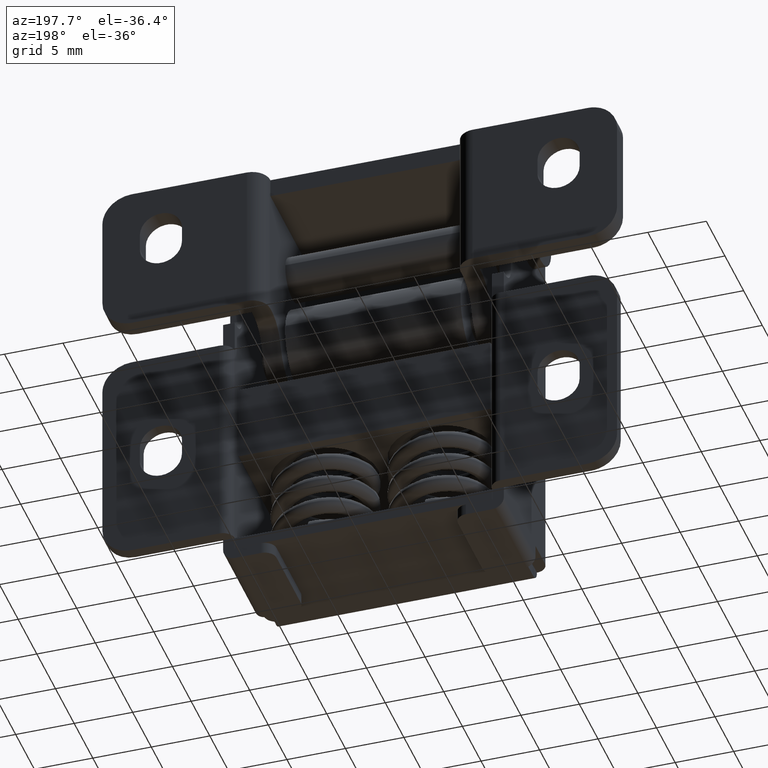
[diagram: clean part render]
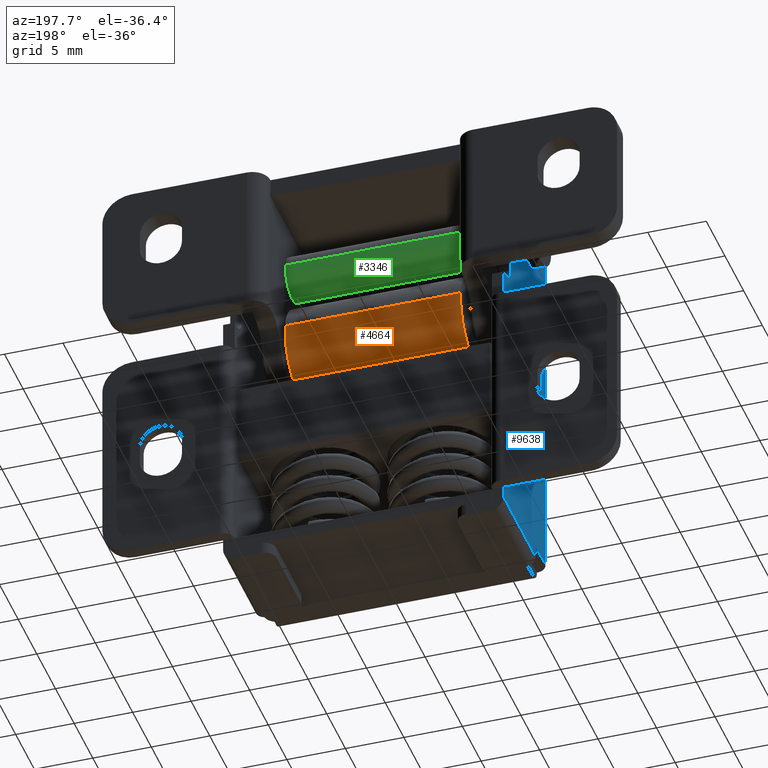
[diagram: same view with three faces highlighted in distinct colors, each labeled with its STEP entity id]
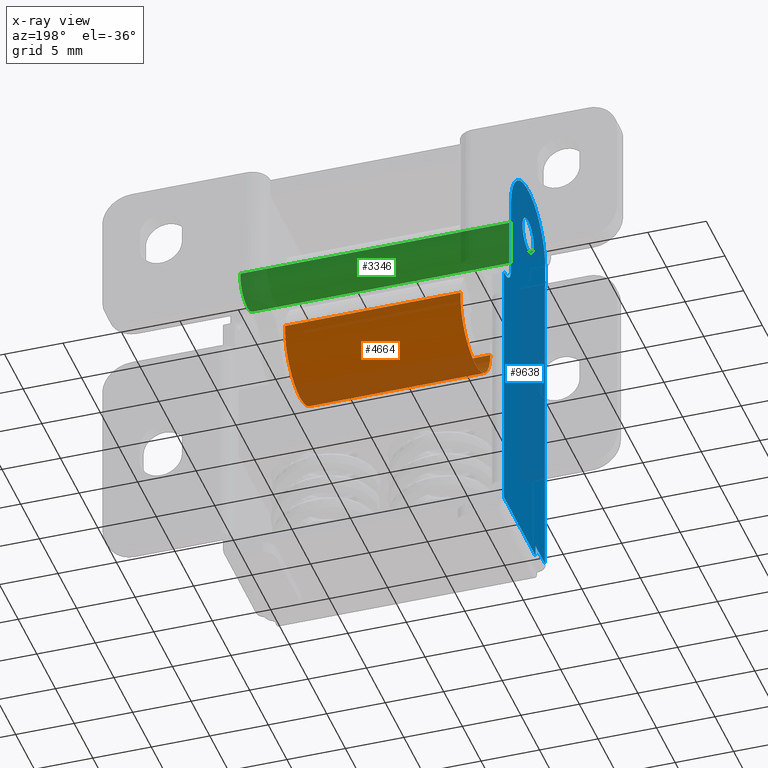
[diagram: x-ray of the same camera — body ghosted, the three highlighted faces saturated]
A machine part, auxiliary view with three faces highlighted in distinct colors.
The next image is the same camera in x-ray (body ghosted, the three faces saturated) — at least one of them is partly hidden behind the body in this view.
Their STEP definitions:

[orange] entity #4664 — the highlighted face is a freeform B-spline surface patch.
#4562=CARTESIAN_POINT('',(7.875000000000003,3.972038105454666,-7.527863061372967));
#4563=CARTESIAN_POINT('',(7.875000000000002,3.985550461794422,-7.641541085448090));
#4564=CARTESIAN_POINT('',(7.875000000000001,3.992539193687467,-7.755805841860572));
#4565=CARTESIAN_POINT('',(7.875000000000002,4.236733351826894,-11.748345035548038));
#4566=CARTESIAN_POINT('',(7.875000000000001,0.244194158139428,-11.992539193687470));
#4567=CARTESIAN_POINT('',(7.875000000000002,-3.748345035548039,-12.236733351826894));
#4568=CARTESIAN_POINT('',(7.875000000000001,-3.992539193687467,-8.244194158139427));
#4569=CARTESIAN_POINT('',(-7.884375000000001,3.972038105454666,-7.527863061372967));
#4570=CARTESIAN_POINT('',(-7.884375000000000,3.985550461794422,-7.641541085448090));
#4571=CARTESIAN_POINT('',(-7.884375000000000,3.992539193687467,-7.755805841860572));
#4572=CARTESIAN_POINT('',(-7.884375000000000,4.236733351826894,-11.748345035548038));
#4573=CARTESIAN_POINT('',(-7.884375000000000,0.244194158139428,-11.992539193687470));
#4574=CARTESIAN_POINT('',(-7.884375000000000,-3.748345035548039,-12.236733351826894));
#4575=CARTESIAN_POINT('',(-7.884375000000000,-3.992539193687467,-8.244194158139427));
#4583=(BOUNDED_SURFACE()B_SPLINE_SURFACE(2,1,((#4562,#4569),(#4563,#4570),(#4564,#4571),(#4565,#4572),(#4566,#4573),(#4567,#4574),(#4568,#4575)),.UNSPECIFIED.,.F.,.F.,.U.)B_SPLINE_SURFACE_WITH_KNOTS((3,2,2,3),(2,2),(0.0,0.265096679918781,6.892513677888302,13.519930675857820),(0.0,15.759375000000000),.UNSPECIFIED.)GEOMETRIC_REPRESENTATION_ITEM()RATIONAL_B_SPLINE_SURFACE(((0.977505800795127,0.977505800795127),(0.988284271247462,0.988284271247462),(1.0,1.0),(0.707106781186548,0.707106781186548),(1.0,1.0),(0.707106781186548,0.707106781186548),(1.0,1.0)))REPRESENTATION_ITEM('')SURFACE());
#4584=CARTESIAN_POINT('',(7.500000000000000,3.972038105449978,-7.527863061333534));
#4585=VERTEX_POINT('',#4584);
#4586=CARTESIAN_POINT('',(7.500000000000000,0.0,-12.0));
#4587=VERTEX_POINT('',#4586);
#4588=CARTESIAN_POINT('',(7.500000000000000,3.972038105449978,-7.527863061333534));
#4589=CARTESIAN_POINT('',(7.500000000000000,4.000000000000000,-7.763103521352511));
#4590=CARTESIAN_POINT('',(7.500000000000000,4.0,-8.0));
#4591=CARTESIAN_POINT('',(7.500000000000000,4.000000000000000,-12.0));
#4592=CARTESIAN_POINT('',(7.500000000000000,0.0,-12.0));
#4600=(BOUNDED_CURVE()B_SPLINE_CURVE(2,(#4588,#4589,#4590,#4591,#4592),.UNSPECIFIED.,.F.,.U.)B_SPLINE_CURVE_WITH_KNOTS((3,2,3),(0.229562473512289,0.250000000000000,0.500000000000000),.UNSPECIFIED.)CURVE()GEOMETRIC_REPRESENTATION_ITEM()RATIONAL_B_SPLINE_CURVE((0.956026754181309,0.976055948329716,1.0,0.707106781186548,1.0))REPRESENTATION_ITEM(''));
#4601=EDGE_CURVE('',#4585,#4587,#4600,.T.);
#4602=ORIENTED_EDGE('',*,*,#4601,.T.);
#4603=CARTESIAN_POINT('',(7.499999999999996,-3.992539319808105,-8.244192096067742));
#4604=VERTEX_POINT('',#4603);
#4605=CARTESIAN_POINT('',(7.500000000000000,0.0,-12.0));
#4606=CARTESIAN_POINT('',(7.499999999999999,-3.762826214683080,-12.0));
#4607=CARTESIAN_POINT('',(7.499999999999996,-3.992539319808105,-8.244192096067742));
#4615=(BOUNDED_CURVE()B_SPLINE_CURVE(2,(#4605,#4606,#4607),.UNSPECIFIED.,.F.,.U.)B_SPLINE_CURVE_WITH_KNOTS((3,3),(0.500000000000000,0.739333051359158),.UNSPECIFIED.)CURVE()GEOMETRIC_REPRESENTATION_ITEM()RATIONAL_B_SPLINE_CURVE((1.0,0.719603888875883,0.976072232668378))REPRESENTATION_ITEM(''));
#4616=EDGE_CURVE('',#4587,#4604,#4615,.T.);
#4617=ORIENTED_EDGE('',*,*,#4616,.T.);
#4618=CARTESIAN_POINT('',(-7.500000000000000,-3.992539318291822,-8.244192120859173));
#4619=VERTEX_POINT('',#4618);
#4620=CARTESIAN_POINT('',(7.499999999999996,-3.992539319808105,-8.244192096067742));
#4621=CARTESIAN_POINT('',(-7.500000000000000,-3.992539318291822,-8.244192120859173));
#4622=QUASI_UNIFORM_CURVE('',1,(#4620,#4621),.UNSPECIFIED.,.F.,.U.);
#4623=EDGE_CURVE('',#4604,#4619,#4622,.T.);
#4624=ORIENTED_EDGE('',*,*,#4623,.T.);
#4625=CARTESIAN_POINT('',(-7.500000000000000,0.0,-12.0));
#4626=VERTEX_POINT('',#4625);
#4627=CARTESIAN_POINT('',(-7.500000000000000,0.0,-12.0));
#4628=CARTESIAN_POINT('',(-7.500000000000000,-3.762826191274380,-12.0));
#4629=CARTESIAN_POINT('',(-7.500000000000000,-3.992539318291822,-8.244192120859173));
#4637=(BOUNDED_CURVE()B_SPLINE_CURVE(2,(#4627,#4628,#4629),.UNSPECIFIED.,.F.,.U.)B_SPLINE_CURVE_WITH_KNOTS((3,3),(0.500000000000000,0.739333050287739),.UNSPECIFIED.)CURVE()GEOMETRIC_REPRESENTATION_ITEM()RATIONAL_B_SPLINE_CURVE((1.0,0.719603890131129,0.976072230372122))REPRESENTATION_ITEM(''));
#4638=EDGE_CURVE('',#4626,#4619,#4637,.T.);
#4639=ORIENTED_EDGE('',*,*,#4638,.F.);
#4640=CARTESIAN_POINT('',(-7.500000000000000,3.972038105449978,-7.527863061333534));
#4641=VERTEX_POINT('',#4640);
#4642=CARTESIAN_POINT('',(-7.500000000000000,3.972038105449978,-7.527863061333534));
#4643=CARTESIAN_POINT('',(-7.500000000000001,4.000000000000000,-7.763103521352511));
#4644=CARTESIAN_POINT('',(-7.500000000000000,4.0,-8.0));
#4645=CARTESIAN_POINT('',(-7.500000000000000,4.000000000000000,-12.0));
#4646=CARTESIAN_POINT('',(-7.500000000000000,0.0,-12.0));
#4654=(BOUNDED_CURVE()B_SPLINE_CURVE(2,(#4642,#4643,#4644,#4645,#4646),.UNSPECIFIED.,.F.,.U.)B_SPLINE_CURVE_WITH_KNOTS((3,2,3),(0.229562473512289,0.250000000000000,0.500000000000000),.UNSPECIFIED.)CURVE()GEOMETRIC_REPRESENTATION_ITEM()RATIONAL_B_SPLINE_CURVE((0.956026754181309,0.976055948329716,1.0,0.707106781186548,1.0))REPRESENTATION_ITEM(''));
#4655=EDGE_CURVE('',#4641,#4626,#4654,.T.);
#4656=ORIENTED_EDGE('',*,*,#4655,.F.);
#4657=CARTESIAN_POINT('',(7.500000000000000,3.972038105449978,-7.527863061333534));
#4658=CARTESIAN_POINT('',(-7.500000000000000,3.972038105449978,-7.527863061333534));
#4659=QUASI_UNIFORM_CURVE('',1,(#4657,#4658),.UNSPECIFIED.,.F.,.U.);
#4660=EDGE_CURVE('',#4585,#4641,#4659,.T.);
#4661=ORIENTED_EDGE('',*,*,#4660,.F.);
#4662=EDGE_LOOP('',(#4602,#4617,#4624,#4639,#4656,#4661));
#4663=FACE_OUTER_BOUND('',#4662,.T.);
#4664=ADVANCED_FACE('',(#4663),#4583,.T.);

[blue] entity #9638 — the highlighted face is a freeform B-spline surface patch.
#7713=CARTESIAN_POINT('',(-12.0,1.499942884594711,0.013089803424694));
#7714=VERTEX_POINT('',#7713);
#7720=CARTESIAN_POINT('',(-12.0,0.0,-1.500000000000000));
#7721=VERTEX_POINT('',#7720);
#7722=CARTESIAN_POINT('',(-12.0,0.0,-1.500000000000000));
#7723=CARTESIAN_POINT('',(-12.0,1.500000000000000,-1.500000000000000));
#7724=CARTESIAN_POINT('',(-12.0,1.500000000000000,0.0));
#7725=CARTESIAN_POINT('',(-12.0,1.500000000000000,0.006545026408193));
#7726=CARTESIAN_POINT('',(-12.000000000000002,1.499942884594711,0.013089803424694));
#7734=(BOUNDED_CURVE()B_SPLINE_CURVE(2,(#7722,#7723,#7724,#7725,#7726),.UNSPECIFIED.,.F.,.U.)B_SPLINE_CURVE_WITH_KNOTS((3,2,3),(0.500000000000000,0.750000000000000,0.751539894376589),.UNSPECIFIED.)CURVE()GEOMETRIC_REPRESENTATION_ITEM()RATIONAL_B_SPLINE_CURVE((1.0,0.707106781186548,1.0,0.998195901517632,0.996414028004127))REPRESENTATION_ITEM(''));
#7735=EDGE_CURVE('',#7721,#7714,#7734,.T.);
#7737=CARTESIAN_POINT('',(-12.0,-1.488399320732575,-0.186192003165575));
#7738=VERTEX_POINT('',#7737);
#7739=CARTESIAN_POINT('',(-11.999999999999998,-1.488399320732575,-0.186192003165575));
#7740=CARTESIAN_POINT('',(-12.000000000000002,-1.324047900143167,-1.500000000000000));
#7741=CARTESIAN_POINT('',(-12.0,0.0,-1.500000000000000));
#7749=(BOUNDED_CURVE()B_SPLINE_CURVE(2,(#7739,#7740,#7741),.UNSPECIFIED.,.F.,.U.)B_SPLINE_CURVE_WITH_KNOTS((3,3),(0.271473928981087,0.500000000000000),.UNSPECIFIED.)CURVE()GEOMETRIC_REPRESENTATION_ITEM()RATIONAL_B_SPLINE_CURVE((0.954005430254564,0.732265053905916,1.0))REPRESENTATION_ITEM(''));
#7750=EDGE_CURVE('',#7738,#7721,#7749,.T.);
#7800=CARTESIAN_POINT('',(-12.0,0.0,1.500000000000000));
#7801=VERTEX_POINT('',#7800);
#7802=CARTESIAN_POINT('',(-12.0,0.0,1.500000000000000));
#7803=CARTESIAN_POINT('',(-12.0,-1.500000000000000,1.500000000000000));
#7804=CARTESIAN_POINT('',(-12.0,-1.500000000000000,0.0));
#7805=CARTESIAN_POINT('',(-12.000000000000002,-1.500000000000000,-0.093457391346610));
#7806=CARTESIAN_POINT('',(-12.000000000000002,-1.488399320732575,-0.186192003165575));
#7814=(BOUNDED_CURVE()B_SPLINE_CURVE(2,(#7802,#7803,#7804,#7805,#7806),.UNSPECIFIED.,.F.,.U.)B_SPLINE_CURVE_WITH_KNOTS((3,2,3),(0.0,0.250000000000000,0.271473928981087),.UNSPECIFIED.)CURVE()GEOMETRIC_REPRESENTATION_ITEM()RATIONAL_B_SPLINE_CURVE((1.0,0.707106781186548,1.0,0.974841727280631,0.954005430254563))REPRESENTATION_ITEM(''));
#7815=EDGE_CURVE('',#7801,#7738,#7814,.T.);
#7817=CARTESIAN_POINT('',(-12.000000000000002,1.499942884594711,0.013089803424694));
#7818=CARTESIAN_POINT('',(-12.0,1.486966815541253,1.500000000000000));
#7819=CARTESIAN_POINT('',(-12.0,0.0,1.500000000000000));
#7827=(BOUNDED_CURVE()B_SPLINE_CURVE(2,(#7817,#7818,#7819),.UNSPECIFIED.,.F.,.U.)B_SPLINE_CURVE_WITH_KNOTS((3,3),(0.751539894376590,1.0),.UNSPECIFIED.)CURVE()GEOMETRIC_REPRESENTATION_ITEM()RATIONAL_B_SPLINE_CURVE((0.996414028004126,0.708910879668916,1.0))REPRESENTATION_ITEM(''));
#7828=EDGE_CURVE('',#7714,#7801,#7827,.T.);
#7949=CARTESIAN_POINT('',(-12.0,-4.500000000000000,-2.0));
#7950=VERTEX_POINT('',#7949);
#7951=CARTESIAN_POINT('',(-12.0,-4.599991000000000,-2.0));
#7952=VERTEX_POINT('',#7951);
#7953=CARTESIAN_POINT('',(-12.0,-4.500000000000000,-2.0));
#7954=CARTESIAN_POINT('',(-12.0,-4.599991000000000,-2.0));
#7955=QUASI_UNIFORM_CURVE('',1,(#7953,#7954),.UNSPECIFIED.,.F.,.U.);
#7956=EDGE_CURVE('',#7950,#7952,#7955,.T.);
#8018=CARTESIAN_POINT('',(-12.0,-4.500000000000000,-29.989999999999998));
#8019=VERTEX_POINT('',#8018);
#8020=CARTESIAN_POINT('',(-12.0,-4.500000000000000,-2.0));
#8021=CARTESIAN_POINT('',(-12.0,-4.500000000000000,-29.989999999999998));
#8022=QUASI_UNIFORM_CURVE('',1,(#8020,#8021),.UNSPECIFIED.,.F.,.U.);
#8023=EDGE_CURVE('',#7950,#8019,#8022,.T.);
#9056=CARTESIAN_POINT('',(-12.0,6.500000000000000,-31.0));
#9057=VERTEX_POINT('',#9056);
#9078=CARTESIAN_POINT('',(-12.0,-2.0,-31.0));
#9079=VERTEX_POINT('',#9078);
#9093=CARTESIAN_POINT('',(-12.0,6.500000000000000,-31.0));
#9094=CARTESIAN_POINT('',(-12.0,-2.0,-31.0));
#9095=QUASI_UNIFORM_CURVE('',1,(#9093,#9094),.UNSPECIFIED.,.F.,.U.);
#9096=EDGE_CURVE('',#9057,#9079,#9095,.T.);
#9536=CARTESIAN_POINT('',(-12.0,-5.154435424737290,6.378217568615796));
#9537=CARTESIAN_POINT('',(-12.0,7.054444821703902,6.378217568615796));
#9538=CARTESIAN_POINT('',(-12.0,-5.154435424737290,-32.778220773479298));
#9539=CARTESIAN_POINT('',(-12.0,7.054444821703902,-32.778220773479298));
#9540=B_SPLINE_SURFACE_WITH_KNOTS('',1,1,((#9536,#9538),(#9537,#9539)),.UNSPECIFIED.,.F.,.F.,.U.,(2,2),(2,2),(0.0,12.208880246441190),(0.0,39.156438342095093),.UNSPECIFIED.);
#9541=CARTESIAN_POINT('',(-12.0,-2.0,-29.989999999999998));
#9542=VERTEX_POINT('',#9541);
#9543=CARTESIAN_POINT('',(-12.0,-4.500000000000000,-29.989999999999998));
#9544=CARTESIAN_POINT('',(-12.0,-2.0,-29.989999999999998));
#9545=QUASI_UNIFORM_CURVE('',1,(#9543,#9544),.UNSPECIFIED.,.F.,.U.);
#9546=EDGE_CURVE('',#8019,#9542,#9545,.T.);
#9547=ORIENTED_EDGE('',*,*,#9546,.F.);
#9548=ORIENTED_EDGE('',*,*,#8023,.F.);
#9549=ORIENTED_EDGE('',*,*,#7956,.T.);
#9550=CARTESIAN_POINT('',(-12.0,-4.599991000000000,-0.009099446072249));
#9551=VERTEX_POINT('',#9550);
#9552=CARTESIAN_POINT('',(-12.0,-4.599991000000000,-2.0));
#9553=CARTESIAN_POINT('',(-12.0,-4.599991000000000,-0.009099446072249));
#9554=QUASI_UNIFORM_CURVE('',1,(#9552,#9553),.UNSPECIFIED.,.F.,.U.);
#9555=EDGE_CURVE('',#7952,#9551,#9554,.T.);
#9556=ORIENTED_EDGE('',*,*,#9555,.T.);
#9557=CARTESIAN_POINT('',(-12.0,4.600000000000000,0.0));
#9558=VERTEX_POINT('',#9557);
#9559=CARTESIAN_POINT('',(-12.0,4.600000000000000,0.0));
#9560=CARTESIAN_POINT('',(-12.000000000000007,4.600000000000000,2.657833723765079));
#9561=CARTESIAN_POINT('',(-12.0,2.297372714657439,3.985232566607313));
#9562=CARTESIAN_POINT('',(-12.000000000000007,-0.005254570685121,5.312631409449545));
#9563=CARTESIAN_POINT('',(-12.0,-2.305251569542395,3.980680243516467));
#9564=CARTESIAN_POINT('',(-12.000000000000007,-4.605248568399670,2.648729077583387));
#9565=CARTESIAN_POINT('',(-12.0,-4.599991000000020,-0.009099446072247));
#9573=(BOUNDED_CURVE()B_SPLINE_CURVE(2,(#9559,#9560,#9561,#9562,#9563,#9564,#9565),.UNSPECIFIED.,.F.,.U.)B_SPLINE_CURVE_WITH_KNOTS((3,2,2,3),(0.0,0.333333333333333,0.666666666666667,1.0),.UNSPECIFIED.)CURVE()GEOMETRIC_REPRESENTATION_ITEM()RATIONAL_B_SPLINE_CURVE((1.0,0.865860511575764,1.0,0.865860511575764,1.0,0.865860511575764,1.0))REPRESENTATION_ITEM(''));
#9574=EDGE_CURVE('',#9558,#9551,#9573,.T.);
#9575=ORIENTED_EDGE('',*,*,#9574,.F.);
#9576=CARTESIAN_POINT('',(-12.0,4.600005999999900,-6.699997130899891));
#9577=VERTEX_POINT('',#9576);
#9578=CARTESIAN_POINT('',(-12.0,4.600000000000000,0.0));
#9579=CARTESIAN_POINT('',(-12.0,4.600005999999900,-6.699997130899891));
#9580=QUASI_UNIFORM_CURVE('',1,(#9578,#9579),.UNSPECIFIED.,.F.,.U.);
#9581=EDGE_CURVE('',#9558,#9577,#9580,.T.);
#9582=ORIENTED_EDGE('',*,*,#9581,.T.);
#9583=CARTESIAN_POINT('',(-12.0,6.100006026179830,-8.199997000000201));
#9584=VERTEX_POINT('',#9583);
#9585=CARTESIAN_POINT('',(-12.0,4.600005999999896,-6.699997130899892));
#9586=CARTESIAN_POINT('',(-12.0,4.600006130899578,-8.199997026180139));
#9587=CARTESIAN_POINT('',(-12.0,6.100006026179830,-8.199997000000201));
#9595=(BOUNDED_CURVE()B_SPLINE_CURVE(2,(#9585,#9586,#9587),.UNSPECIFIED.,.F.,.U.)CURVE()GEOMETRIC_REPRESENTATION_ITEM()QUASI_UNIFORM_CURVE()RATIONAL_B_SPLINE_CURVE((1.0,0.707106805869229,1.0))REPRESENTATION_ITEM(''));
#9596=EDGE_CURVE('',#9577,#9584,#9595,.T.);
#9597=ORIENTED_EDGE('',*,*,#9596,.T.);
#9598=CARTESIAN_POINT('',(-12.0,6.500000000000000,-8.199997000000000));
#9599=VERTEX_POINT('',#9598);
#9600=CARTESIAN_POINT('',(-12.0,6.100006026179830,-8.199997000000201));
#9601=CARTESIAN_POINT('',(-12.0,6.500000000000000,-8.199997000000000));
#9602=QUASI_UNIFORM_CURVE('',1,(#9600,#9601),.UNSPECIFIED.,.F.,.U.);
#9603=EDGE_CURVE('',#9584,#9599,#9602,.T.);
#9604=ORIENTED_EDGE('',*,*,#9603,.T.);
#9605=CARTESIAN_POINT('',(-12.000000000000121,6.500000000000000,-11.0));
#9606=VERTEX_POINT('',#9605);
#9607=CARTESIAN_POINT('',(-12.0,6.500000000000000,-8.199997000000000));
#9608=CARTESIAN_POINT('',(-12.000000000000121,6.500000000000000,-11.0));
#9609=QUASI_UNIFORM_CURVE('',1,(#9607,#9608),.UNSPECIFIED.,.F.,.U.);
#9610=EDGE_CURVE('',#9599,#9606,#9609,.T.);
#9611=ORIENTED_EDGE('',*,*,#9610,.T.);
#9612=CARTESIAN_POINT('',(-12.0,6.500000000000000,-30.0));
#9613=VERTEX_POINT('',#9612);
#9614=CARTESIAN_POINT('',(-12.000000000000121,6.500000000000000,-11.0));
#9615=CARTESIAN_POINT('',(-12.0,6.500000000000000,-30.0));
#9616=QUASI_UNIFORM_CURVE('',1,(#9614,#9615),.UNSPECIFIED.,.F.,.U.);
#9617=EDGE_CURVE('',#9606,#9613,#9616,.T.);
#9618=ORIENTED_EDGE('',*,*,#9617,.T.);
#9619=CARTESIAN_POINT('',(-12.0,6.500000000000000,-30.0));
#9620=CARTESIAN_POINT('',(-12.0,6.500000000000000,-31.0));
#9621=QUASI_UNIFORM_CURVE('',1,(#9619,#9620),.UNSPECIFIED.,.F.,.U.);
#9622=EDGE_CURVE('',#9613,#9057,#9621,.T.);
#9623=ORIENTED_EDGE('',*,*,#9622,.T.);
#9624=ORIENTED_EDGE('',*,*,#9096,.T.);
#9625=CARTESIAN_POINT('',(-12.0,-2.0,-29.989999999999998));
#9626=CARTESIAN_POINT('',(-12.0,-2.0,-31.0));
#9627=QUASI_UNIFORM_CURVE('',1,(#9625,#9626),.UNSPECIFIED.,.F.,.U.);
#9628=EDGE_CURVE('',#9542,#9079,#9627,.T.);
#9629=ORIENTED_EDGE('',*,*,#9628,.F.);
#9630=EDGE_LOOP('',(#9547,#9548,#9549,#9556,#9575,#9582,#9597,#9604,#9611,#9618,#9623,#9624,#9629));
#9631=FACE_OUTER_BOUND('',#9630,.T.);
#9632=ORIENTED_EDGE('',*,*,#7735,.T.);
#9633=ORIENTED_EDGE('',*,*,#7828,.T.);
#9634=ORIENTED_EDGE('',*,*,#7815,.T.);
#9635=ORIENTED_EDGE('',*,*,#7750,.T.);
#9636=EDGE_LOOP('',(#9632,#9633,#9634,#9635));
#9637=FACE_BOUND('',#9636,.T.);
#9638=ADVANCED_FACE('',(#9631,#9637),#9540,.T.);

[green] entity #3346 — the highlighted face is a freeform B-spline surface patch.
#3244=CARTESIAN_POINT('',(12.600000000000003,1.886712142033714,0.224264337642422));
#3245=CARTESIAN_POINT('',(12.600000000000001,1.893130491026564,0.170267446723777));
#3246=CARTESIAN_POINT('',(12.600000000000000,1.896450128192661,0.115991858824985));
#3247=CARTESIAN_POINT('',(12.600000000000005,2.012441987017647,-1.780458269367675));
#3248=CARTESIAN_POINT('',(12.600000000000000,0.115991858824985,-1.896450128192661));
#3249=CARTESIAN_POINT('',(12.600000000000005,-1.780458269367675,-2.012441987017647));
#3250=CARTESIAN_POINT('',(12.600000000000000,-1.896450128192661,-0.115991858824985));
#3251=CARTESIAN_POINT('',(-12.615000000000007,1.886712142033714,0.224264337642422));
#3252=CARTESIAN_POINT('',(-12.615000000000009,1.893130491026564,0.170267446723777));
#3253=CARTESIAN_POINT('',(-12.615000000000000,1.896450128192661,0.115991858824985));
#3254=CARTESIAN_POINT('',(-12.615000000000002,2.012441987017647,-1.780458269367675));
#3255=CARTESIAN_POINT('',(-12.615000000000000,0.115991858824985,-1.896450128192661));
#3256=CARTESIAN_POINT('',(-12.615000000000002,-1.780458269367675,-2.012441987017647));
#3257=CARTESIAN_POINT('',(-12.615000000000000,-1.896450128192661,-0.115991858824985));
#3265=(BOUNDED_SURFACE()B_SPLINE_SURFACE(2,1,((#3244,#3251),(#3245,#3252),(#3246,#3253),(#3247,#3254),(#3248,#3255),(#3249,#3256),(#3250,#3257)),.UNSPECIFIED.,.F.,.F.,.U.)B_SPLINE_SURFACE_WITH_KNOTS((3,2,2,3),(2,2),(0.0,0.125920525316395,3.273933658226262,6.421946791136129),(0.0,25.215000000000011),.UNSPECIFIED.)GEOMETRIC_REPRESENTATION_ITEM()RATIONAL_B_SPLINE_SURFACE(((0.977505800795127,0.977505800795127),(0.988284271247462,0.988284271247462),(1.0,1.0),(0.707106781186548,0.707106781186548),(1.0,1.0),(0.707106781186548,0.707106781186548),(1.0,1.0)))REPRESENTATION_ITEM('')SURFACE());
#3266=CARTESIAN_POINT('',(12.0,1.886712142023783,0.224264337725967));
#3267=VERTEX_POINT('',#3266);
#3268=CARTESIAN_POINT('',(12.0,0.0,-1.899993999999905));
#3269=VERTEX_POINT('',#3268);
#3270=CARTESIAN_POINT('',(11.999999999999996,1.886712142023783,0.224264337725967));
#3271=CARTESIAN_POINT('',(12.000000000000005,1.899993999999906,0.112525472078334));
#3272=CARTESIAN_POINT('',(12.0,1.899993999999905,0.0));
#3273=CARTESIAN_POINT('',(12.0,1.899993999999905,-1.899993999999905));
#3274=CARTESIAN_POINT('',(12.0,0.0,-1.899993999999905));
#3282=(BOUNDED_CURVE()B_SPLINE_CURVE(2,(#3270,#3271,#3272,#3273,#3274),.UNSPECIFIED.,.F.,.U.)B_SPLINE_CURVE_WITH_KNOTS((3,2,3),(0.229562473500677,0.250000000000000,0.500000000000000),.UNSPECIFIED.)CURVE()GEOMETRIC_REPRESENTATION_ITEM()RATIONAL_B_SPLINE_CURVE((0.956026754158549,0.976055948316112,1.0,0.707106781186548,1.0))REPRESENTATION_ITEM(''));
#3283=EDGE_CURVE('',#3267,#3269,#3282,.T.);
#3284=ORIENTED_EDGE('',*,*,#3283,.T.);
#3285=CARTESIAN_POINT('',(12.0,-1.896450128185269,-0.115991858945846));
#3286=VERTEX_POINT('',#3285);
#3287=CARTESIAN_POINT('',(12.0,0.0,-1.899993999999905));
#3288=CARTESIAN_POINT('',(12.000000000000002,-1.787335882656092,-1.899993999999905));
#3289=CARTESIAN_POINT('',(11.999999999999998,-1.896450128185269,-0.115991858945846));
#3297=(BOUNDED_CURVE()B_SPLINE_CURVE(2,(#3287,#3288,#3289),.UNSPECIFIED.,.F.,.U.)B_SPLINE_CURVE_WITH_KNOTS((3,3),(0.500000000000000,0.739332962219976),.UNSPECIFIED.)CURVE()GEOMETRIC_REPRESENTATION_ITEM()RATIONAL_B_SPLINE_CURVE((1.0,0.719603993308932,0.976072041626068))REPRESENTATION_ITEM(''));
#3298=EDGE_CURVE('',#3269,#3286,#3297,.T.);
#3299=ORIENTED_EDGE('',*,*,#3298,.T.);
#3300=CARTESIAN_POINT('',(-12.0,-1.896450128185269,-0.115991858945846));
#3301=VERTEX_POINT('',#3300);
#3302=CARTESIAN_POINT('',(12.0,-1.896450128185269,-0.115991858945846));
#3303=CARTESIAN_POINT('',(-12.0,-1.896450128185269,-0.115991858945846));
#3304=QUASI_UNIFORM_CURVE('',1,(#3302,#3303),.UNSPECIFIED.,.F.,.U.);
#3305=EDGE_CURVE('',#3286,#3301,#3304,.T.);
#3306=ORIENTED_EDGE('',*,*,#3305,.T.);
#3307=CARTESIAN_POINT('',(-12.0,0.0,-1.899993999999905));
#3308=VERTEX_POINT('',#3307);
#3309=CARTESIAN_POINT('',(-12.0,0.0,-1.899993999999905));
#3310=CARTESIAN_POINT('',(-12.000000000000002,-1.787335882656092,-1.899993999999905));
#3311=CARTESIAN_POINT('',(-11.999999999999998,-1.896450128185269,-0.115991858945846));
#3319=(BOUNDED_CURVE()B_SPLINE_CURVE(2,(#3309,#3310,#3311),.UNSPECIFIED.,.F.,.U.)B_SPLINE_CURVE_WITH_KNOTS((3,3),(0.500000000000000,0.739332962219976),.UNSPECIFIED.)CURVE()GEOMETRIC_REPRESENTATION_ITEM()RATIONAL_B_SPLINE_CURVE((1.0,0.719603993308932,0.976072041626068))REPRESENTATION_ITEM(''));
#3320=EDGE_CURVE('',#3308,#3301,#3319,.T.);
#3321=ORIENTED_EDGE('',*,*,#3320,.F.);
#3322=CARTESIAN_POINT('',(-12.0,1.886712142023783,0.224264337725967));
#3323=VERTEX_POINT('',#3322);
#3324=CARTESIAN_POINT('',(-12.000000000000007,1.886712142023783,0.224264337725967));
#3325=CARTESIAN_POINT('',(-12.000000000000005,1.899993999999906,0.112525472078334));
#3326=CARTESIAN_POINT('',(-12.0,1.899993999999905,0.0));
#3327=CARTESIAN_POINT('',(-12.0,1.899993999999905,-1.899993999999905));
#3328=CARTESIAN_POINT('',(-12.0,0.0,-1.899993999999905));
#3336=(BOUNDED_CURVE()B_SPLINE_CURVE(2,(#3324,#3325,#3326,#3327,#3328),.UNSPECIFIED.,.F.,.U.)B_SPLINE_CURVE_WITH_KNOTS((3,2,3),(0.229562473500677,0.250000000000000,0.500000000000000),.UNSPECIFIED.)CURVE()GEOMETRIC_REPRESENTATION_ITEM()RATIONAL_B_SPLINE_CURVE((0.956026754158549,0.976055948316112,1.0,0.707106781186548,1.0))REPRESENTATION_ITEM(''));
#3337=EDGE_CURVE('',#3323,#3308,#3336,.T.);
#3338=ORIENTED_EDGE('',*,*,#3337,.F.);
#3339=CARTESIAN_POINT('',(12.0,1.886712142023783,0.224264337725967));
#3340=CARTESIAN_POINT('',(-12.0,1.886712142023783,0.224264337725967));
#3341=QUASI_UNIFORM_CURVE('',1,(#3339,#3340),.UNSPECIFIED.,.F.,.U.);
#3342=EDGE_CURVE('',#3267,#3323,#3341,.T.);
#3343=ORIENTED_EDGE('',*,*,#3342,.F.);
#3344=EDGE_LOOP('',(#3284,#3299,#3306,#3321,#3338,#3343));
#3345=FACE_OUTER_BOUND('',#3344,.T.);
#3346=ADVANCED_FACE('',(#3345),#3265,.T.);